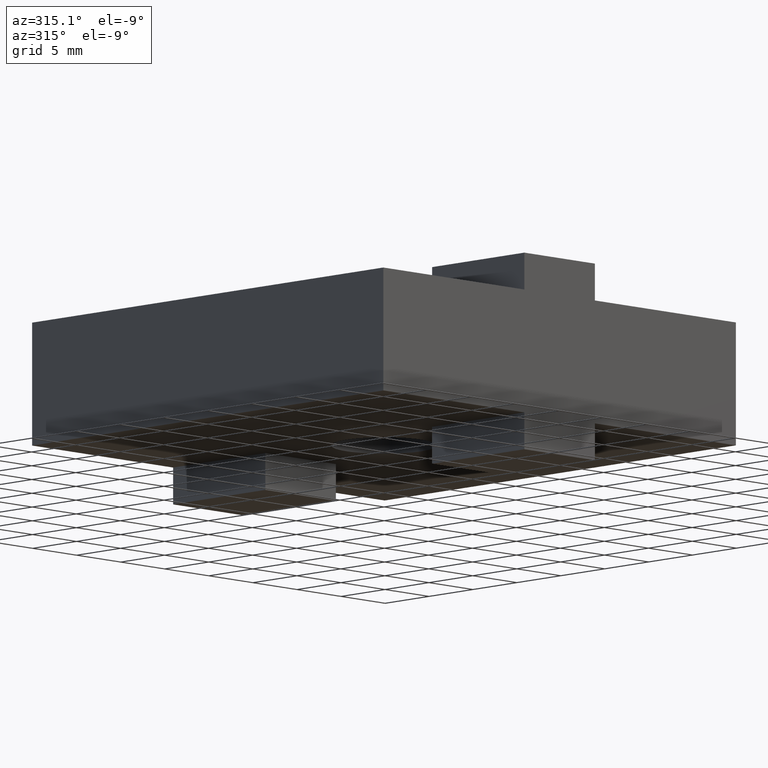
[diagram: clean part render]
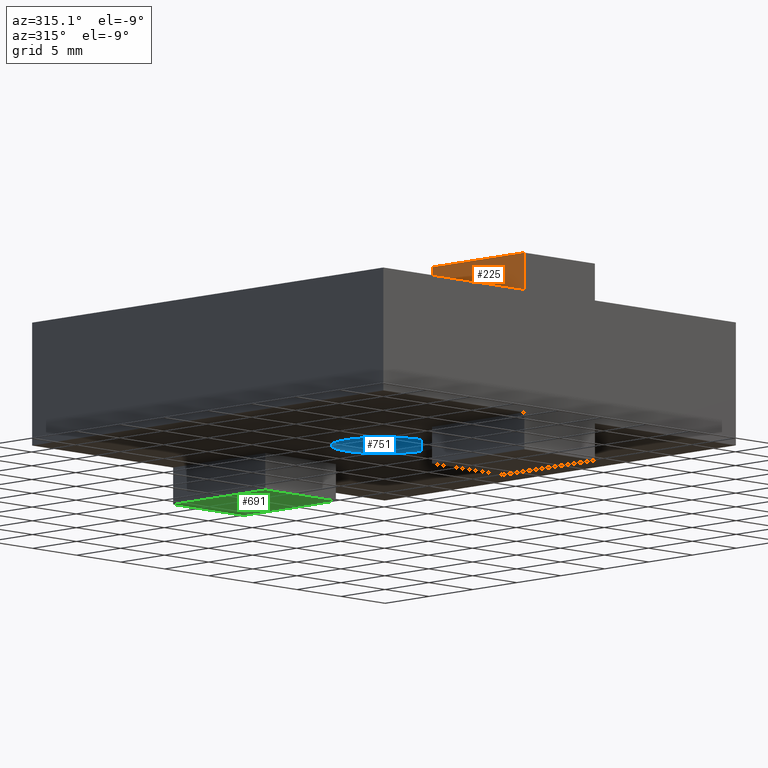
[diagram: same view with three faces highlighted in distinct colors, each labeled with its STEP entity id]
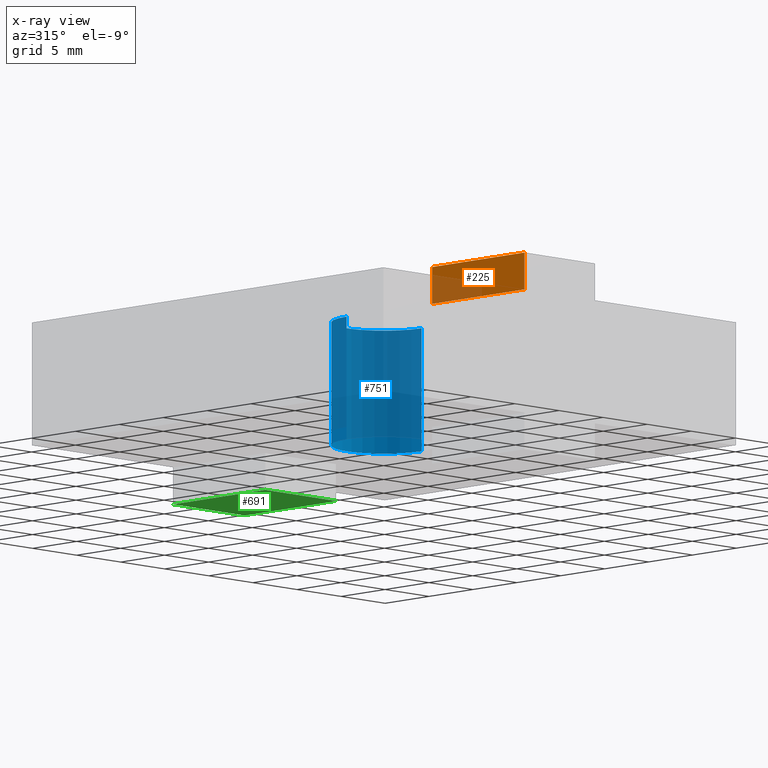
[diagram: x-ray of the same camera — body ghosted, the three highlighted faces saturated]
A machine part, auxiliary view with three faces highlighted in distinct colors.
The next image is the same camera in x-ray (body ghosted, the three faces saturated) — at least one of them is partly hidden behind the body in this view.
Their STEP definitions:

[orange] entity #225 — the highlighted planar face has unit normal (1, 0, 0).
#186=CARTESIAN_POINT('',(-4.000000000000004,-0.524999999999999,16.150000000000006));
#187=DIRECTION('',(1.0,0.0,0.0));
#188=DIRECTION('',(0.0,0.0,-1.0));
#189=AXIS2_PLACEMENT_3D('',#186,#187,#188);
#190=PLANE('',#189);
#191=CARTESIAN_POINT('',(-4.000000000000004,10.500000000000014,16.0));
#192=VERTEX_POINT('',#191);
#193=CARTESIAN_POINT('',(-4.000000000000004,0.0,16.000000000000007));
#194=VERTEX_POINT('',#193);
#195=CARTESIAN_POINT('',(-4.000000000000004,10.500000000000014,16.000000000000007));
#196=DIRECTION('',(0.0,-1.0,0.0));
#197=VECTOR('',#196,10.500000000000014);
#198=LINE('',#195,#197);
#199=EDGE_CURVE('',#192,#194,#198,.T.);
#200=ORIENTED_EDGE('',*,*,#199,.F.);
#201=CARTESIAN_POINT('',(-4.000000000000004,10.500000000000014,12.999999999999996));
#202=VERTEX_POINT('',#201);
#203=CARTESIAN_POINT('',(-4.000000000000004,10.500000000000014,12.999999999999996));
#204=DIRECTION('',(0.0,0.0,1.0));
#205=VECTOR('',#204,3.000000000000004);
#206=LINE('',#203,#205);
#207=EDGE_CURVE('',#202,#192,#206,.T.);
#208=ORIENTED_EDGE('',*,*,#207,.F.);
#209=CARTESIAN_POINT('',(-4.000000000000004,0.0,13.0));
#210=VERTEX_POINT('',#209);
#211=CARTESIAN_POINT('',(-4.000000000000004,10.500000000000014,13.0));
#212=DIRECTION('',(0.0,-1.0,0.0));
#213=VECTOR('',#212,10.500000000000014);
#214=LINE('',#211,#213);
#215=EDGE_CURVE('',#202,#210,#214,.T.);
#216=ORIENTED_EDGE('',*,*,#215,.T.);
#217=CARTESIAN_POINT('',(-4.000000000000004,0.0,16.000000000000007));
#218=DIRECTION('',(0.0,0.0,-1.0));
#219=VECTOR('',#218,3.000000000000005);
#220=LINE('',#217,#219);
#221=EDGE_CURVE('',#194,#210,#220,.T.);
#222=ORIENTED_EDGE('',*,*,#221,.F.);
#223=EDGE_LOOP('',(#200,#208,#216,#222));
#224=FACE_OUTER_BOUND('',#223,.T.);
#225=ADVANCED_FACE('',(#224),#190,.F.);

[blue] entity #751 — the highlighted cylindrical surface (partial cylindrical patch) has radius 4.25 mm, axis along (0, 0, 1).
#7=CARTESIAN_POINT('',(-4.250000000000004,20.0,3.0));
#8=VERTEX_POINT('',#7);
#9=CARTESIAN_POINT('',(4.250000000000000,20.0,3.0));
#10=VERTEX_POINT('',#9);
#18=CARTESIAN_POINT('',(-4.250000000000004,20.0,13.0));
#19=VERTEX_POINT('',#18);
#20=CARTESIAN_POINT('',(-4.250000000000004,20.0,3.0));
#21=DIRECTION('',(0.0,0.0,1.0));
#22=VECTOR('',#21,10.0);
#23=LINE('',#20,#22);
#24=EDGE_CURVE('',#8,#19,#23,.T.);
#26=CARTESIAN_POINT('',(4.250000000000000,20.0,13.0));
#27=VERTEX_POINT('',#26);
#35=CARTESIAN_POINT('',(4.250000000000000,20.0,3.0));
#36=DIRECTION('',(0.0,0.0,1.0));
#37=VECTOR('',#36,10.0);
#38=LINE('',#35,#37);
#39=EDGE_CURVE('',#10,#27,#38,.T.);
#333=CARTESIAN_POINT('',(-3.552714E-015,20.0,3.0));
#334=DIRECTION('',(0.0,0.0,1.0));
#335=DIRECTION('',(1.0,0.0,0.0));
#336=AXIS2_PLACEMENT_3D('',#333,#334,#335);
#337=CIRCLE('',#336,4.250000000000000);
#338=EDGE_CURVE('',#10,#8,#337,.T.);
#551=CARTESIAN_POINT('',(-3.552714E-015,20.0,13.0));
#552=DIRECTION('',(0.0,0.0,1.0));
#553=DIRECTION('',(0.0,-1.0,0.0));
#554=AXIS2_PLACEMENT_3D('',#551,#552,#553);
#555=CIRCLE('',#554,4.250000000000000);
#556=EDGE_CURVE('',#27,#19,#555,.T.);
#740=CARTESIAN_POINT('',(-3.552714E-015,20.0,2.999999989999999));
#741=DIRECTION('',(0.0,0.0,1.0));
#742=DIRECTION('',(0.0,-1.0,0.0));
#743=AXIS2_PLACEMENT_3D('',#740,#741,#742);
#744=CYLINDRICAL_SURFACE('',#743,4.250000000000000);
#745=ORIENTED_EDGE('',*,*,#24,.F.);
#746=ORIENTED_EDGE('',*,*,#338,.F.);
#747=ORIENTED_EDGE('',*,*,#39,.T.);
#748=ORIENTED_EDGE('',*,*,#556,.T.);
#749=EDGE_LOOP('',(#745,#746,#747,#748));
#750=FACE_OUTER_BOUND('',#749,.T.);
#751=ADVANCED_FACE('',(#750),#744,.F.);

[green] entity #691 — the highlighted planar face has unit normal (0, 0, -1).
#442=CARTESIAN_POINT('',(4.0,40.0,0.0));
#443=VERTEX_POINT('',#442);
#450=CARTESIAN_POINT('',(-4.000000000000004,40.0,0.0));
#451=VERTEX_POINT('',#450);
#452=CARTESIAN_POINT('',(-4.000000000000004,40.0,0.0));
#453=DIRECTION('',(1.0,0.0,0.0));
#454=VECTOR('',#453,8.000000000000004);
#455=LINE('',#452,#454);
#456=EDGE_CURVE('',#451,#443,#455,.T.);
#633=CARTESIAN_POINT('',(4.0,29.500000000000000,0.0));
#634=VERTEX_POINT('',#633);
#641=CARTESIAN_POINT('',(4.0,40.0,0.0));
#642=DIRECTION('',(0.0,-1.0,0.0));
#643=VECTOR('',#642,10.499999999999993);
#644=LINE('',#641,#643);
#645=EDGE_CURVE('',#443,#634,#644,.T.);
#656=CARTESIAN_POINT('',(-4.000000000000004,29.500000000000000,0.0));
#657=VERTEX_POINT('',#656);
#658=CARTESIAN_POINT('',(-4.000000000000004,29.500000000000000,0.0));
#659=DIRECTION('',(0.0,1.0,0.0));
#660=VECTOR('',#659,10.500000000000000);
#661=LINE('',#658,#660);
#662=EDGE_CURVE('',#657,#451,#661,.T.);
#675=CARTESIAN_POINT('',(4.399999999999999,28.974999999999994,0.0));
#676=DIRECTION('',(0.0,0.0,-1.0));
#677=DIRECTION('',(-1.0,0.0,0.0));
#678=AXIS2_PLACEMENT_3D('',#675,#676,#677);
#679=PLANE('',#678);
#680=CARTESIAN_POINT('',(-4.000000000000004,29.500000000000000,0.0));
#681=DIRECTION('',(1.0,0.0,0.0));
#682=VECTOR('',#681,8.000000000000004);
#683=LINE('',#680,#682);
#684=EDGE_CURVE('',#657,#634,#683,.T.);
#685=ORIENTED_EDGE('',*,*,#684,.F.);
#686=ORIENTED_EDGE('',*,*,#662,.T.);
#687=ORIENTED_EDGE('',*,*,#456,.T.);
#688=ORIENTED_EDGE('',*,*,#645,.T.);
#689=EDGE_LOOP('',(#685,#686,#687,#688));
#690=FACE_OUTER_BOUND('',#689,.T.);
#691=ADVANCED_FACE('',(#690),#679,.T.);